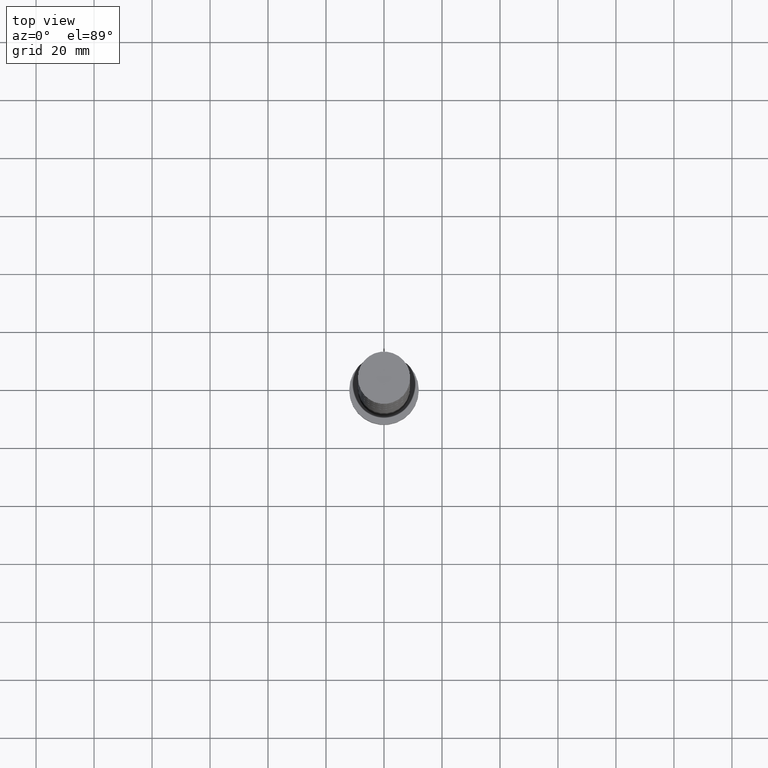
[diagram: clean part render]
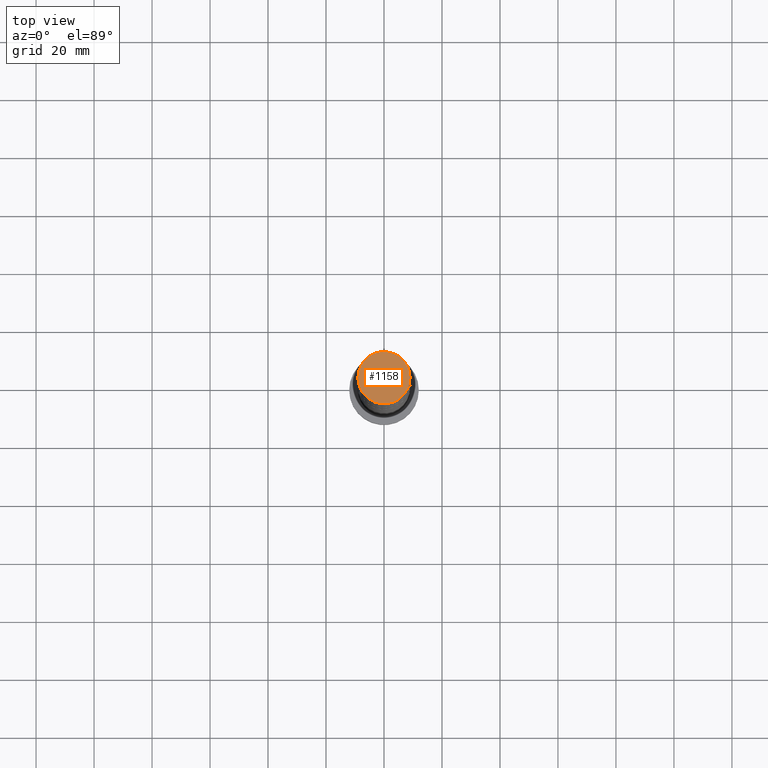
[diagram: same view with one face highlighted and labeled with its STEP entity id]
A machine part, top view. The second image highlights one B-rep face of the part: STEP entity #1158.
In plain terms, the highlighted planar face has unit normal (0, 0, 1).
Its self-contained STEP definition (entity closure, byte-faithful):
#30 = CARTESIAN_POINT ( 'NONE',  ( 0.000000000000000000, 0.000000000000000000, 250.0000000000000000 ) ) ;
#95 = AXIS2_PLACEMENT_3D ( 'NONE', #1294, #1544, #277 ) ;
#241 = CARTESIAN_POINT ( 'NONE',  ( 0.000000000000000000, 0.000000000000000000, 250.0000000000000000 ) ) ;
#251 = CARTESIAN_POINT ( 'NONE',  ( 9.000000000000001776, 1.102182119232617911E-15, 250.0000000000000000 ) ) ;
#277 = DIRECTION ( 'NONE',  ( 1.000000000000000000, 0.000000000000000000, -0.000000000000000000 ) ) ;
#411 = VERTEX_POINT ( 'NONE', #891 ) ;
#499 = DIRECTION ( 'NONE',  ( 0.000000000000000000, 0.000000000000000000, 1.000000000000000000 ) ) ;
#595 = DIRECTION ( 'NONE',  ( 0.000000000000000000, 0.000000000000000000, 1.000000000000000000 ) ) ;
#843 = ORIENTED_EDGE ( 'NONE', *, *, #1683, .T. ) ;
#891 = CARTESIAN_POINT ( 'NONE',  ( -9.000000000000001776, 0.000000000000000000, 250.0000000000000000 ) ) ;
#959 = AXIS2_PLACEMENT_3D ( 'NONE', #30, #595, #1168 ) ;
#993 = FACE_OUTER_BOUND ( 'NONE', #1502, .T. ) ;
#1132 = CIRCLE ( 'NONE', #959, 9.000000000000001776 ) ;
#1150 = ORIENTED_EDGE ( 'NONE', *, *, #1454, .T. ) ;
#1158 = ADVANCED_FACE ( 'NONE', ( #993 ), #1552, .T. ) ;
#1164 = AXIS2_PLACEMENT_3D ( 'NONE', #241, #499, #1621 ) ;
#1168 = DIRECTION ( 'NONE',  ( 1.000000000000000000, 0.000000000000000000, 0.000000000000000000 ) ) ;
#1294 = CARTESIAN_POINT ( 'NONE',  ( 0.000000000000000000, 0.000000000000000000, 250.0000000000000000 ) ) ;
#1391 = CIRCLE ( 'NONE', #1164, 9.000000000000001776 ) ;
#1454 = EDGE_CURVE ( 'NONE', #1622, #411, #1132, .T. ) ;
#1502 = EDGE_LOOP ( 'NONE', ( #843, #1150 ) ) ;
#1544 = DIRECTION ( 'NONE',  ( 0.000000000000000000, 0.000000000000000000, 1.000000000000000000 ) ) ;
#1552 = PLANE ( 'NONE',  #95 ) ;
#1621 = DIRECTION ( 'NONE',  ( 1.000000000000000000, 0.000000000000000000, 0.000000000000000000 ) ) ;
#1622 = VERTEX_POINT ( 'NONE', #251 ) ;
#1683 = EDGE_CURVE ( 'NONE', #411, #1622, #1391, .T. ) ;